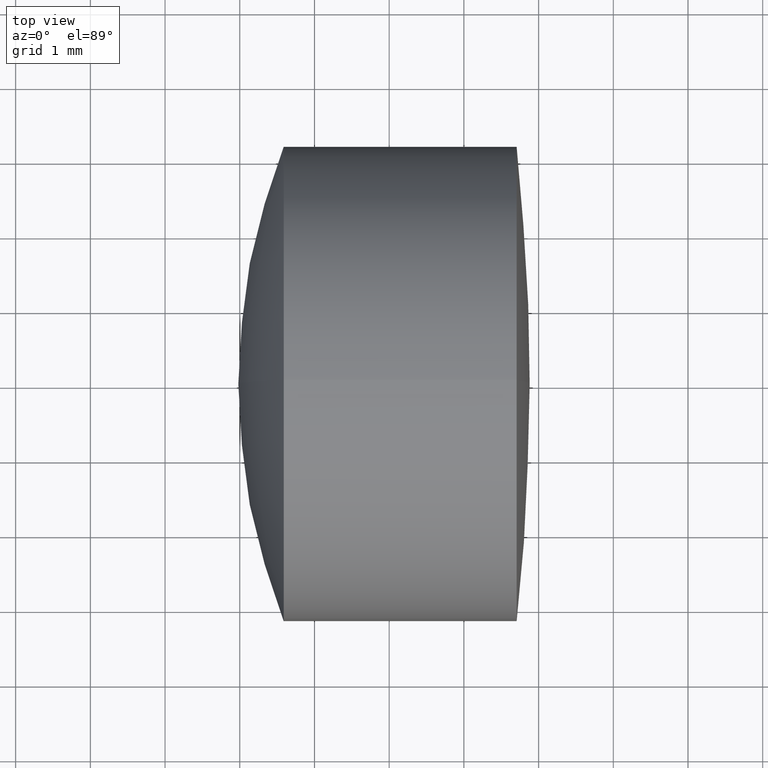
[diagram: clean part render]
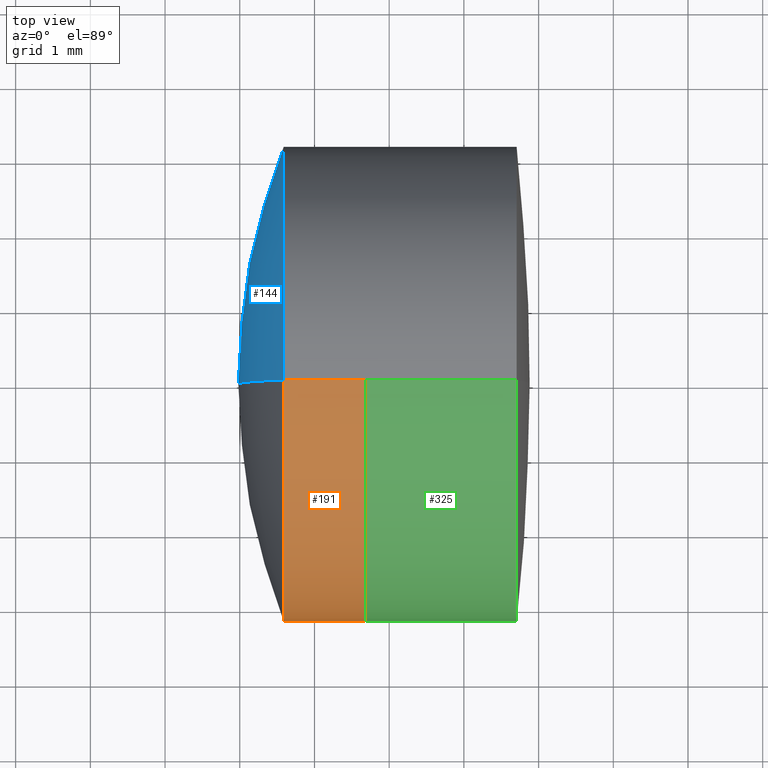
[diagram: same view with three faces highlighted in distinct colors, each labeled with its STEP entity id]
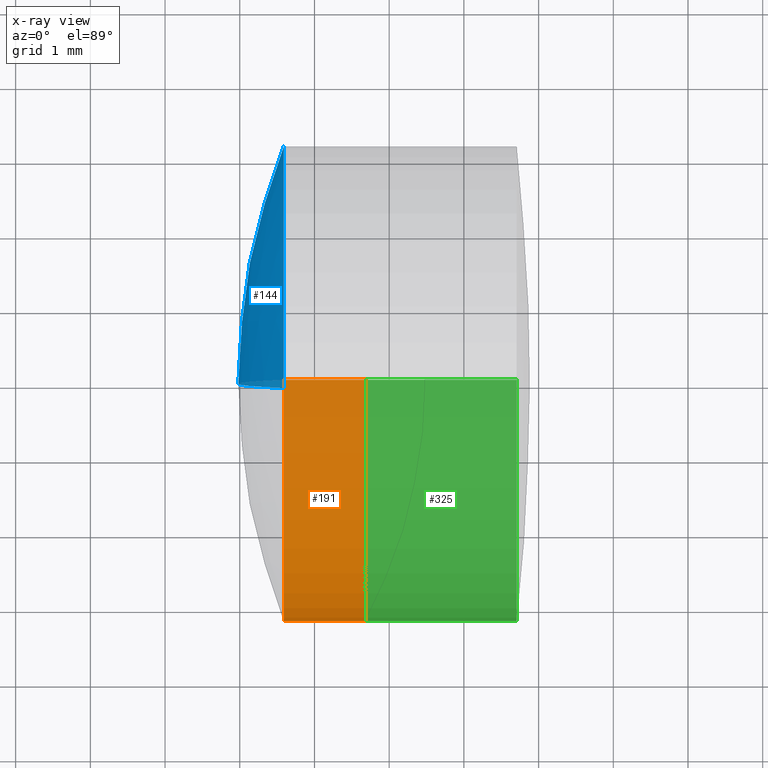
[diagram: x-ray of the same camera — body ghosted, the three highlighted faces saturated]
A machine part, top view with three faces highlighted in distinct colors.
The next image is the same camera in x-ray (body ghosted, the three faces saturated) — at least one of them is partly hidden behind the body in this view.
Their STEP definitions:

[orange] entity #191 — the highlighted cylindrical surface (partial cylindrical patch) has radius 3.175 mm, axis along (-1, -0, -0).
#11 = EDGE_CURVE ( 'NONE', #137, #195, #148, .T. ) ;
#14 = DIRECTION ( 'NONE',  ( -1.000000000000000000, -0.0000000000000000000, -0.0000000000000000000 ) ) ;
#17 = DIRECTION ( 'NONE',  ( -1.000000000000000000, -0.0000000000000000000, -0.0000000000000000000 ) ) ;
#21 = CARTESIAN_POINT ( 'NONE',  ( 261.6806597883319800, 3.888253587292846100E-016, -3.174999999999999800 ) ) ;
#28 = EDGE_LOOP ( 'NONE', ( #117, #61, #197, #187 ) ) ;
#46 = VERTEX_POINT ( 'NONE', #253 ) ;
#61 = ORIENTED_EDGE ( 'NONE', *, *, #11, .T. ) ;
#64 = VERTEX_POINT ( 'NONE', #124 ) ;
#80 = DIRECTION ( 'NONE',  ( -1.000000000000000000, -0.0000000000000000000, -0.0000000000000000000 ) ) ;
#83 = DIRECTION ( 'NONE',  ( 0.0000000000000000000, 0.0000000000000000000, 1.000000000000000000 ) ) ;
#101 = EDGE_CURVE ( 'NONE', #195, #46, #127, .T. ) ;
#117 = ORIENTED_EDGE ( 'NONE', *, *, #322, .F. ) ;
#124 = CARTESIAN_POINT ( 'NONE',  ( 260.5882553728641800, 0.0000000000000000000, -3.174999999999998500 ) ) ;
#127 = LINE ( 'NONE', #218, #166 ) ;
#130 = CARTESIAN_POINT ( 'NONE',  ( 124.5233095260452400, 0.0000000000000000000, 0.0000000000000000000 ) ) ;
#137 = VERTEX_POINT ( 'NONE', #21 ) ;
#148 = CIRCLE ( 'NONE', #271, 3.174999999999999800 ) ;
#151 = AXIS2_PLACEMENT_3D ( 'NONE', #130, #297, #83 ) ;
#153 = DIRECTION ( 'NONE',  ( -1.000000000000000000, -0.0000000000000000000, -0.0000000000000000000 ) ) ;
#166 = VECTOR ( 'NONE', #80, 1000.000000000000000 ) ;
#174 = DIRECTION ( 'NONE',  ( 0.0000000000000000000, 0.0000000000000000000, 1.000000000000000000 ) ) ;
#176 = DIRECTION ( 'NONE',  ( 0.0000000000000000000, 0.0000000000000000000, 1.000000000000000000 ) ) ;
#184 = VECTOR ( 'NONE', #153, 1000.000000000000000 ) ;
#187 = ORIENTED_EDGE ( 'NONE', *, *, #296, .F. ) ;
#191 = ADVANCED_FACE ( 'NONE', ( #257 ), #303, .T. ) ;
#192 = AXIS2_PLACEMENT_3D ( 'NONE', #206, #17, #176 ) ;
#195 = VERTEX_POINT ( 'NONE', #209 ) ;
#197 = ORIENTED_EDGE ( 'NONE', *, *, #101, .T. ) ;
#202 = CARTESIAN_POINT ( 'NONE',  ( 261.6806597883319800, 0.0000000000000000000, 0.0000000000000000000 ) ) ;
#203 = CARTESIAN_POINT ( 'NONE',  ( 124.5233095260452400, 3.888253587292846100E-016, -3.174999999999999800 ) ) ;
#206 = CARTESIAN_POINT ( 'NONE',  ( 260.5882553728641800, 0.0000000000000000000, 0.0000000000000000000 ) ) ;
#209 = CARTESIAN_POINT ( 'NONE',  ( 261.6806597883319800, 0.0000000000000000000, 3.174999999999999800 ) ) ;
#218 = CARTESIAN_POINT ( 'NONE',  ( 124.5233095260452400, 0.0000000000000000000, 3.174999999999999800 ) ) ;
#253 = CARTESIAN_POINT ( 'NONE',  ( 260.5882553728641800, -3.888253587292844600E-016, 3.174999999999998500 ) ) ;
#257 = FACE_OUTER_BOUND ( 'NONE', #28, .T. ) ;
#271 = AXIS2_PLACEMENT_3D ( 'NONE', #202, #14, #174 ) ;
#279 = CIRCLE ( 'NONE', #192, 3.174999999999999800 ) ;
#296 = EDGE_CURVE ( 'NONE', #64, #46, #279, .T. ) ;
#297 = DIRECTION ( 'NONE',  ( -1.000000000000000000, -0.0000000000000000000, -0.0000000000000000000 ) ) ;
#303 = CYLINDRICAL_SURFACE ( 'NONE', #151, 3.174999999999999800 ) ;
#322 = EDGE_CURVE ( 'NONE', #137, #64, #324, .T. ) ;
#324 = LINE ( 'NONE', #203, #184 ) ;

[blue] entity #144 — the highlighted spherical surface has radius 8.6 mm.
#29 = AXIS2_PLACEMENT_3D ( 'NONE', #344, #131, #314 ) ;
#45 = DIRECTION ( 'NONE',  ( 0.0000000000000000000, 1.224646799147353200E-016, -1.000000000000000000 ) ) ;
#46 = VERTEX_POINT ( 'NONE', #253 ) ;
#62 = CIRCLE ( 'NONE', #29, 3.174999999999999800 ) ;
#64 = VERTEX_POINT ( 'NONE', #124 ) ;
#72 = CARTESIAN_POINT ( 'NONE',  ( 268.5807127546710800, 0.0000000000000000000, 7.729108157225100800E-017 ) ) ;
#74 = EDGE_LOOP ( 'NONE', ( #318, #161, #343 ) ) ;
#92 = AXIS2_PLACEMENT_3D ( 'NONE', #158, #215, #45 ) ;
#96 = DIRECTION ( 'NONE',  ( 0.0000000000000000000, 0.0000000000000000000, 1.000000000000000000 ) ) ;
#106 = EDGE_CURVE ( 'NONE', #46, #64, #62, .T. ) ;
#122 = CIRCLE ( 'NONE', #236, 8.600000000000001400 ) ;
#123 = AXIS2_PLACEMENT_3D ( 'NONE', #216, #159, #264 ) ;
#124 = CARTESIAN_POINT ( 'NONE',  ( 260.5882553728641800, 0.0000000000000000000, -3.174999999999998500 ) ) ;
#131 = DIRECTION ( 'NONE',  ( -1.000000000000000000, -0.0000000000000000000, -0.0000000000000000000 ) ) ;
#144 = ADVANCED_FACE ( 'NONE', ( #308 ), #274, .T. ) ;
#154 = EDGE_CURVE ( 'NONE', #46, #217, #337, .T. ) ;
#158 = CARTESIAN_POINT ( 'NONE',  ( 268.5807127546710800, 0.0000000000000000000, 7.729108157225100800E-017 ) ) ;
#159 = DIRECTION ( 'NONE',  ( -0.0000000000000000000, -1.000000000000000000, -0.0000000000000000000 ) ) ;
#161 = ORIENTED_EDGE ( 'NONE', *, *, #106, .T. ) ;
#215 = DIRECTION ( 'NONE',  ( 0.0000000000000000000, -1.000000000000000000, -1.224646799147353200E-016 ) ) ;
#216 = CARTESIAN_POINT ( 'NONE',  ( 268.5807127546710800, 0.0000000000000000000, 7.729108157225100800E-017 ) ) ;
#217 = VERTEX_POINT ( 'NONE', #242 ) ;
#233 = DIRECTION ( 'NONE',  ( 0.0000000000000000000, 1.000000000000000000, -0.0000000000000000000 ) ) ;
#236 = AXIS2_PLACEMENT_3D ( 'NONE', #72, #233, #96 ) ;
#242 = CARTESIAN_POINT ( 'NONE',  ( 259.9807127546711200, 0.0000000000000000000, -4.493070420611109600E-016 ) ) ;
#253 = CARTESIAN_POINT ( 'NONE',  ( 260.5882553728641800, -3.888253587292844600E-016, 3.174999999999998500 ) ) ;
#264 = DIRECTION ( 'NONE',  ( 0.0000000000000000000, 0.0000000000000000000, -1.000000000000000000 ) ) ;
#274 = SPHERICAL_SURFACE ( 'NONE', #123, 8.600000000000001400 ) ;
#304 = EDGE_CURVE ( 'NONE', #64, #217, #122, .T. ) ;
#308 = FACE_OUTER_BOUND ( 'NONE', #74, .T. ) ;
#314 = DIRECTION ( 'NONE',  ( 0.0000000000000000000, 0.0000000000000000000, 1.000000000000000000 ) ) ;
#318 = ORIENTED_EDGE ( 'NONE', *, *, #154, .F. ) ;
#337 = CIRCLE ( 'NONE', #92, 8.600000000000001400 ) ;
#343 = ORIENTED_EDGE ( 'NONE', *, *, #304, .T. ) ;
#344 = CARTESIAN_POINT ( 'NONE',  ( 260.5882553728641800, 0.0000000000000000000, 0.0000000000000000000 ) ) ;

[green] entity #325 — the highlighted cylindrical surface (partial cylindrical patch) has radius 3.175 mm, axis along (-1, -0, -0).
#15 = CARTESIAN_POINT ( 'NONE',  ( -0.5519199926577972300, 0.0000000000000000000, 0.0000000000000000000 ) ) ;
#26 = DIRECTION ( 'NONE',  ( -1.000000000000000000, -0.0000000000000000000, -0.0000000000000000000 ) ) ;
#30 = LINE ( 'NONE', #165, #113 ) ;
#48 = DIRECTION ( 'NONE',  ( -1.000000000000000000, -0.0000000000000000000, -0.0000000000000000000 ) ) ;
#50 = FACE_OUTER_BOUND ( 'NONE', #281, .T. ) ;
#58 = ORIENTED_EDGE ( 'NONE', *, *, #225, .F. ) ;
#65 = EDGE_CURVE ( 'NONE', #342, #323, #263, .T. ) ;
#68 = DIRECTION ( 'NONE',  ( -1.000000000000000000, -0.0000000000000000000, -0.0000000000000000000 ) ) ;
#73 = AXIS2_PLACEMENT_3D ( 'NONE', #268, #48, #240 ) ;
#76 = CARTESIAN_POINT ( 'NONE',  ( -0.5519199926577972300, 0.0000000000000000000, 3.175000000000000700 ) ) ;
#102 = CARTESIAN_POINT ( 'NONE',  ( 261.6806597883319800, 0.0000000000000000000, 0.0000000000000000000 ) ) ;
#113 = VECTOR ( 'NONE', #26, 1000.000000000000000 ) ;
#118 = AXIS2_PLACEMENT_3D ( 'NONE', #102, #126, #346 ) ;
#120 = VERTEX_POINT ( 'NONE', #239 ) ;
#126 = DIRECTION ( 'NONE',  ( -1.000000000000000000, -0.0000000000000000000, -0.0000000000000000000 ) ) ;
#135 = VECTOR ( 'NONE', #178, 1000.000000000000000 ) ;
#147 = CIRCLE ( 'NONE', #118, 3.175000000000000700 ) ;
#165 = CARTESIAN_POINT ( 'NONE',  ( -0.5519199926577972300, 3.888253587292847100E-016, -3.175000000000000700 ) ) ;
#178 = DIRECTION ( 'NONE',  ( -1.000000000000000000, -0.0000000000000000000, -0.0000000000000000000 ) ) ;
#179 = ORIENTED_EDGE ( 'NONE', *, *, #65, .T. ) ;
#200 = DIRECTION ( 'NONE',  ( 0.0000000000000000000, 0.0000000000000000000, 1.000000000000000000 ) ) ;
#205 = LINE ( 'NONE', #76, #135 ) ;
#207 = EDGE_CURVE ( 'NONE', #342, #286, #30, .T. ) ;
#225 = EDGE_CURVE ( 'NONE', #286, #120, #147, .T. ) ;
#239 = CARTESIAN_POINT ( 'NONE',  ( 261.6806597883319800, 0.0000000000000000000, 3.175000000000000700 ) ) ;
#240 = DIRECTION ( 'NONE',  ( 0.0000000000000000000, 0.0000000000000000000, 1.000000000000000000 ) ) ;
#247 = CYLINDRICAL_SURFACE ( 'NONE', #317, 3.175000000000000700 ) ;
#256 = CARTESIAN_POINT ( 'NONE',  ( 263.7063849064184100, 0.0000000000000000000, 3.175000000000000700 ) ) ;
#260 = EDGE_CURVE ( 'NONE', #323, #120, #205, .T. ) ;
#263 = CIRCLE ( 'NONE', #73, 3.175000000000000700 ) ;
#268 = CARTESIAN_POINT ( 'NONE',  ( 263.7063849064184100, 0.0000000000000000000, 0.0000000000000000000 ) ) ;
#281 = EDGE_LOOP ( 'NONE', ( #300, #179, #282, #58 ) ) ;
#282 = ORIENTED_EDGE ( 'NONE', *, *, #260, .T. ) ;
#286 = VERTEX_POINT ( 'NONE', #288 ) ;
#288 = CARTESIAN_POINT ( 'NONE',  ( 261.6806597883319800, 3.888253587292847600E-016, -3.175000000000000700 ) ) ;
#300 = ORIENTED_EDGE ( 'NONE', *, *, #207, .F. ) ;
#317 = AXIS2_PLACEMENT_3D ( 'NONE', #15, #68, #200 ) ;
#323 = VERTEX_POINT ( 'NONE', #256 ) ;
#325 = ADVANCED_FACE ( 'NONE', ( #50 ), #247, .T. ) ;
#333 = CARTESIAN_POINT ( 'NONE',  ( 263.7063849064184100, 3.888253587292847100E-016, -3.175000000000000700 ) ) ;
#342 = VERTEX_POINT ( 'NONE', #333 ) ;
#346 = DIRECTION ( 'NONE',  ( 0.0000000000000000000, 0.0000000000000000000, 1.000000000000000000 ) ) ;